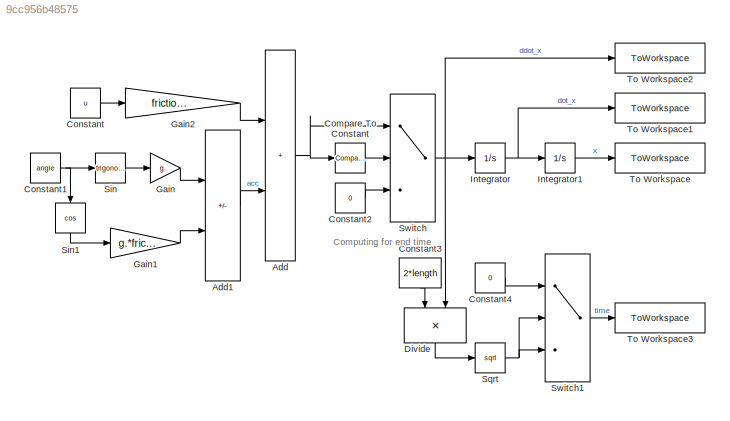
MODEL slx_9cc956b48575
KIND model
CONFIG AbsTol = auto
CONFIG EnableMultiTasking = off
CONFIG FixedStep = auto
CONFIG MaxStep = 0.01
CONFIG MinStep = auto
CONFIG RelTol = 1e-3
CONFIG SampleTimeConstraint = Unconstrained
CONFIG SolverName = VariableStepAuto
CONFIG StartTime = 0.0
CONFIG StopTime = stopTime
BLOCK [Sum] Add
  IconShape = rectangular
BLOCK [Sum] Add1
  IconShape = rectangular
  Inputs = +-
BLOCK [Reference] Compare To Constant  REF=simulink/Logic and Bit
Operations/Compare
To Constant
  SourceBlock = simulink/Logic and Bit\nOperations/Compare\nTo Constant
  SourceType = Compare To Constant
BLOCK [Constant] Constant
  Value = u
BLOCK [Constant] Constant1
  Value = angle
BLOCK [Constant] Constant2
  Value = 0
BLOCK [Constant] Constant3
  Commented = on
  NameLocation = left
  Value = 2*length
BLOCK [Constant] Constant4
  Commented = on
  Value = 0
BLOCK [Product] Divide
  Commented = on
  Inputs = */
  NameLocation = left
BLOCK [Gain] Gain
  Gain = g
BLOCK [Gain] Gain1
  Gain = g.*friction
BLOCK [Gain] Gain2
  Gain = friction./weight
BLOCK [Integrator] Integrator
BLOCK [Integrator] Integrator1
  UpperSaturationLimit = length
BLOCK [Trigonometry] Sin
BLOCK [Trigonometry] Sin1
  NameLocation = left
  Operator = cos
BLOCK [Sqrt] Sqrt
  Commented = on
  IntermediateResultsDataTypeStr = double
BLOCK [Switch] Switch
  Criteria = u2 > Threshold
  InputSameDT = off
  SaturateOnIntegerOverflow = off
BLOCK [Switch] Switch1
  Commented = on
  Criteria = u2 > Threshold
  InputSameDT = off
  SaturateOnIntegerOverflow = off
  Threshold = stopTime
BLOCK [ToWorkspace] To Workspace
  FixptAsFi = on
  MaxDataPoints = inf
  SampleTime = -1
  SaveFormat = Timeseries
  VariableName = x
BLOCK [ToWorkspace] To Workspace1
  FixptAsFi = on
  MaxDataPoints = inf
  SampleTime = -1
  SaveFormat = Timeseries
  VariableName = dot_x
BLOCK [ToWorkspace] To Workspace2
  FixptAsFi = on
  MaxDataPoints = inf
  SampleTime = -1
  SaveFormat = Timeseries
  VariableName = ddot_x
BLOCK [ToWorkspace] To Workspace3
  Commented = on
  FixptAsFi = on
  MaxDataPoints = inf
  SampleTime = -1
  SaveFormat = Timeseries
  VariableName = time
ANNOTATION (root): Computing for end time
LINE Add1:1 -> Add:2
NET Add:1 -> Compare To Constant:1, Switch:1
LINE Compare To Constant:1 -> Switch:2
NET Constant1:1 -> Sin1:1, Sin:1
LINE Constant2:1 -> Switch:3
LINE Constant3:1 -> Divide:1
LINE Constant4:1 -> Switch1:1
LINE Constant:1 -> Gain2:1
LINE Divide:1 -> Sqrt:1
LINE Gain1:1 -> Add1:2
LINE Gain2:1 -> Add:1
LINE Gain:1 -> Add1:1
LINE Integrator1:1 -> To Workspace:1
NET Integrator:1 -> Integrator1:1, To Workspace1:1
LINE Sin1:1 -> Gain1:1
LINE Sin:1 -> Gain:1
NET Sqrt:1 -> Switch1:2, Switch1:3
LINE Switch1:1 -> To Workspace3:1
NET Switch:1 -> Divide:2, Integrator:1, To Workspace2:1
note: NET lines group one-source signal fan-out (src -> all destinations, sorted); 1:1 wires keep LINE
